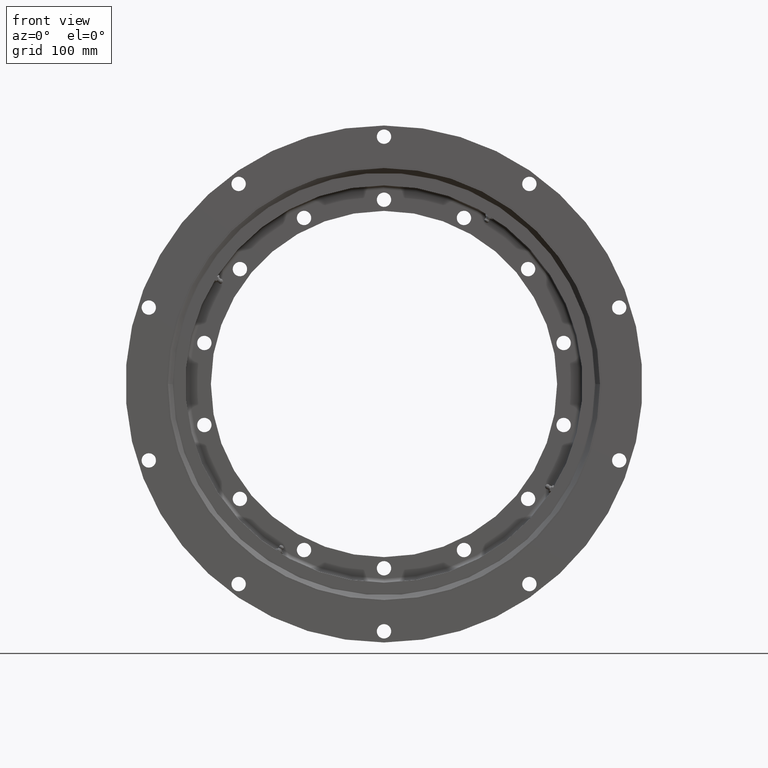
[diagram: clean part render]
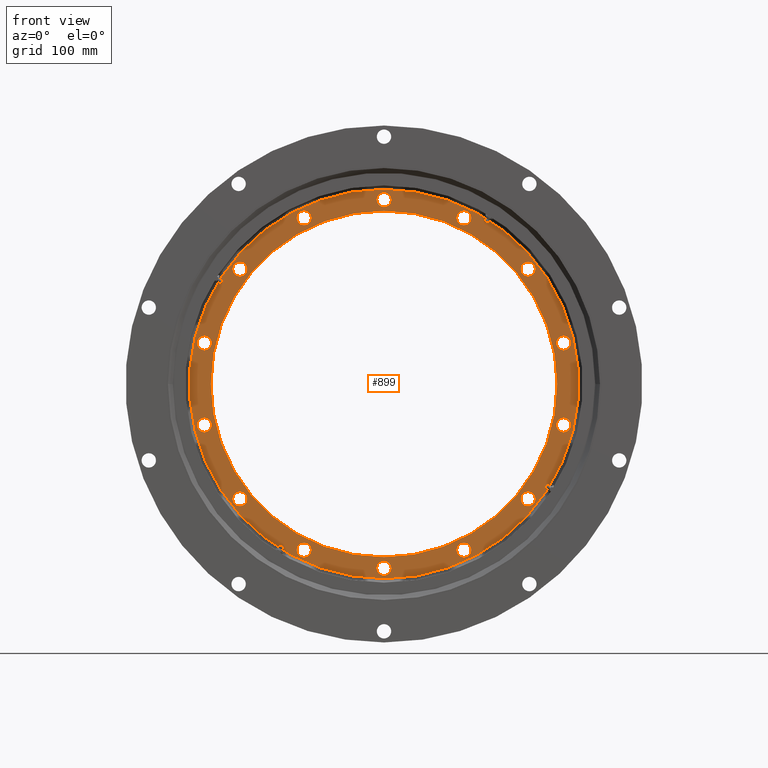
[diagram: same view with one face highlighted and labeled with its STEP entity id]
A machine part, front view. The second image highlights one B-rep face of the part: STEP entity #899.
In plain terms, the highlighted planar face has unit normal (0, -1, -0).
Its self-contained STEP definition (entity closure, byte-faithful):
#5 = AXIS2_PLACEMENT_3D ( 'NONE', #6013, #1482, #6764 ) ;
#40 = VERTEX_POINT ( 'NONE', #7930 ) ;
#56 = EDGE_LOOP ( 'NONE', ( #58, #9621 ) ) ;
#58 = ORIENTED_EDGE ( 'NONE', *, *, #7506, .F. ) ;
#89 = EDGE_CURVE ( 'NONE', #8269, #4325, #4054, .T. ) ;
#188 = CIRCLE ( 'NONE', #5654, 244.0000000000000000 ) ;
#190 = CIRCLE ( 'NONE', #879, 9.000000000000001800 ) ;
#192 = DIRECTION ( 'NONE',  ( 0.0000000000000000000, -1.000000000000000000, -3.092576026240644600E-016 ) ) ;
#220 = CARTESIAN_POINT ( 'NONE',  ( -180.6030724537073700, 16.00000000000009600, -153.0261442248626900 ) ) ;
#394 = CARTESIAN_POINT ( 'NONE',  ( 225.2083477168210400, 16.00000000000002800, 42.40233573155438800 ) ) ;
#445 = AXIS2_PLACEMENT_3D ( 'NONE', #1444, #4981, #8776 ) ;
#446 = VERTEX_POINT ( 'NONE', #8763 ) ;
#455 = CIRCLE ( 'NONE', #9253, 9.000000000000007100 ) ;
#471 = CARTESIAN_POINT ( 'NONE',  ( -100.2271437351152900, 15.99999999999997900, 208.1238084859599600 ) ) ;
#473 = EDGE_LOOP ( 'NONE', ( #605, #4861 ) ) ;
#475 = CIRCLE ( 'NONE', #4878, 9.000000000000001800 ) ;
#522 = EDGE_CURVE ( 'NONE', #2384, #40, #4682, .T. ) ;
#562 = DIRECTION ( 'NONE',  ( 0.0000000000000000000, -1.000000000000000000, -3.092576026240644600E-016 ) ) ;
#566 = EDGE_LOOP ( 'NONE', ( #3797, #2123 ) ) ;
#591 = DIRECTION ( 'NONE',  ( 0.0000000000000000000, 3.092576026240644600E-016, -1.000000000000000000 ) ) ;
#605 = ORIENTED_EDGE ( 'NONE', *, *, #3670, .F. ) ;
#612 = AXIS2_PLACEMENT_3D ( 'NONE', #4142, #9406, #1627 ) ;
#613 = EDGE_LOOP ( 'NONE', ( #3490, #1659 ) ) ;
#632 = ORIENTED_EDGE ( 'NONE', *, *, #8706, .F. ) ;
#688 = DIRECTION ( 'NONE',  ( 0.0000000000000000000, 3.854941057726235100E-016, -1.000000000000000000 ) ) ;
#704 = EDGE_CURVE ( 'NONE', #9065, #2978, #1830, .T. ) ;
#733 = FACE_BOUND ( 'NONE', #5050, .T. ) ;
#749 = CIRCLE ( 'NONE', #4445, 9.000000000000007100 ) ;
#762 = CIRCLE ( 'NONE', #8810, 9.000000000000001800 ) ;
#769 = DIRECTION ( 'NONE',  ( 0.0000000000000000000, -1.000000000000000000, -3.092576026240644600E-016 ) ) ;
#775 = EDGE_LOOP ( 'NONE', ( #6104, #7184 ) ) ;
#813 = CIRCLE ( 'NONE', #5423, 244.0000000000000000 ) ;
#853 = ORIENTED_EDGE ( 'NONE', *, *, #9556, .F. ) ;
#879 = AXIS2_PLACEMENT_3D ( 'NONE', #9594, #995, #8682 ) ;
#885 = VERTEX_POINT ( 'NONE', #8154 ) ;
#899 = ADVANCED_FACE ( 'NONE', ( #7035, #9389, #1950, #6547, #733, #4927, #1378, #4441, #1706, #7503, #1477, #3135, #5396, #8092, #7858, #7738 ), #9764, .T. ) ;
#980 = CARTESIAN_POINT ( 'NONE',  ( -225.2083477150271200, 16.00000000000005700, -51.40233573941410600 ) ) ;
#995 = DIRECTION ( 'NONE',  ( 0.0000000000000000000, -1.000000000000000000, -3.092576026240644600E-016 ) ) ;
#997 = CARTESIAN_POINT ( 'NONE',  ( 180.6030724436502300, 16.00000000000009200, -144.0261442374738900 ) ) ;
#1001 = CIRCLE ( 'NONE', #2912, 217.0000000000000300 ) ;
#1009 = EDGE_CURVE ( 'NONE', #8615, #7221, #6669, .T. ) ;
#1036 = EDGE_LOOP ( 'NONE', ( #5448, #3454 ) ) ;
#1067 = VERTEX_POINT ( 'NONE', #220 ) ;
#1119 = DIRECTION ( 'NONE',  ( 0.0000000000000000000, -1.000000000000000000, -3.092576026240644600E-016 ) ) ;
#1136 = ORIENTED_EDGE ( 'NONE', *, *, #2908, .F. ) ;
#1264 = DIRECTION ( 'NONE',  ( 0.0000000000000000000, 3.854941057726235100E-016, -1.000000000000000000 ) ) ;
#1311 = CARTESIAN_POINT ( 'NONE',  ( 225.2083477114377400, 16.00000000000005700, -51.40233575514012900 ) ) ;
#1312 = CARTESIAN_POINT ( 'NONE',  ( 180.6030724436502300, 16.00000000000008900, -135.0261442374738900 ) ) ;
#1354 = AXIS2_PLACEMENT_3D ( 'NONE', #7462, #2055, #3826 ) ;
#1361 = CARTESIAN_POINT ( 'NONE',  ( -225.2083477150271200, 16.00000000000005300, -42.40233573941410600 ) ) ;
#1378 = FACE_BOUND ( 'NONE', #613, .T. ) ;
#1382 = EDGE_LOOP ( 'NONE', ( #3645, #2865 ) ) ;
#1432 = CARTESIAN_POINT ( 'NONE',  ( 180.6030724587337500, 16.00000000000000000, 153.0261442185597500 ) ) ;
#1444 = CARTESIAN_POINT ( 'NONE',  ( 225.2083477114377400, 16.00000000000005700, -51.40233575514012900 ) ) ;
#1464 = DIRECTION ( 'NONE',  ( 0.0000000000000000000, -1.000000000000000000, -3.092576026240644600E-016 ) ) ;
#1473 = AXIS2_PLACEMENT_3D ( 'NONE', #5673, #1119, #6413 ) ;
#1477 = FACE_BOUND ( 'NONE', #473, .T. ) ;
#1482 = DIRECTION ( 'NONE',  ( -0.0000000000000000000, 1.000000000000000000, 3.092576026240644600E-016 ) ) ;
#1486 = AXIS2_PLACEMENT_3D ( 'NONE', #6067, #192, #5108 ) ;
#1627 = DIRECTION ( 'NONE',  ( 0.0000000000000000000, 3.854941057726237100E-016, -1.000000000000000000 ) ) ;
#1659 = ORIENTED_EDGE ( 'NONE', *, *, #6083, .F. ) ;
#1663 = DIRECTION ( 'NONE',  ( 0.0000000000000000000, -1.000000000000000000, -3.092576026240644600E-016 ) ) ;
#1706 = FACE_BOUND ( 'NONE', #3515, .T. ) ;
#1710 = DIRECTION ( 'NONE',  ( 0.0000000000000000000, -1.000000000000000000, -3.092576026240644600E-016 ) ) ;
#1766 = CARTESIAN_POINT ( 'NONE',  ( -225.2083477150271200, 16.00000000000005700, -51.40233573941410600 ) ) ;
#1772 = AXIS2_PLACEMENT_3D ( 'NONE', #8726, #9215, #5946 ) ;
#1777 = EDGE_CURVE ( 'NONE', #40, #2384, #8421, .T. ) ;
#1830 = CIRCLE ( 'NONE', #7931, 9.000000000000007100 ) ;
#1831 = ORIENTED_EDGE ( 'NONE', *, *, #7721, .F. ) ;
#1858 = DIRECTION ( 'NONE',  ( 0.0000000000000000000, -1.000000000000000000, -3.092576026240644600E-016 ) ) ;
#1875 = DIRECTION ( 'NONE',  ( 0.0000000000000000000, -1.000000000000000000, -3.092576026240644600E-016 ) ) ;
#1950 = FACE_BOUND ( 'NONE', #1382, .T. ) ;
#2029 = CARTESIAN_POINT ( 'NONE',  ( -180.6030724537073700, 16.00000000000008900, -135.0261442248626600 ) ) ;
#2055 = DIRECTION ( 'NONE',  ( 0.0000000000000000000, -1.000000000000000000, -3.092576026240644600E-016 ) ) ;
#2123 = ORIENTED_EDGE ( 'NONE', *, *, #9662, .F. ) ;
#2135 = ORIENTED_EDGE ( 'NONE', *, *, #2178, .F. ) ;
#2178 = EDGE_CURVE ( 'NONE', #8142, #4559, #8735, .T. ) ;
#2186 = CIRCLE ( 'NONE', #612, 9.000000000000001800 ) ;
#2202 = VERTEX_POINT ( 'NONE', #5318 ) ;
#2244 = DIRECTION ( 'NONE',  ( 0.0000000000000000000, -1.000000000000000000, -3.092576026240644600E-016 ) ) ;
#2263 = EDGE_CURVE ( 'NONE', #7050, #9046, #2475, .T. ) ;
#2266 = AXIS2_PLACEMENT_3D ( 'NONE', #3047, #7569, #2281 ) ;
#2281 = DIRECTION ( 'NONE',  ( 0.0000000000000000000, 3.854941057726235100E-016, -1.000000000000000000 ) ) ;
#2288 = CIRCLE ( 'NONE', #4251, 9.000000000000007100 ) ;
#2379 = VERTEX_POINT ( 'NONE', #2940 ) ;
#2384 = VERTEX_POINT ( 'NONE', #1432 ) ;
#2475 = CIRCLE ( 'NONE', #3287, 9.000000000000007100 ) ;
#2551 = AXIS2_PLACEMENT_3D ( 'NONE', #6184, #1663, #5449 ) ;
#2583 = CARTESIAN_POINT ( 'NONE',  ( -225.2083477132316900, 16.00000000000002100, 60.40233574728031100 ) ) ;
#2740 = CARTESIAN_POINT ( 'NONE',  ( -100.2271437351152900, 15.99999999999998200, 199.1238084859599600 ) ) ;
#2769 = DIRECTION ( 'NONE',  ( 0.0000000000000000000, 3.854941057726235100E-016, -1.000000000000000000 ) ) ;
#2809 = CARTESIAN_POINT ( 'NONE',  ( -8.065175505147115900E-009, 16.00000000000010700, -222.0000000000000000 ) ) ;
#2865 = ORIENTED_EDGE ( 'NONE', *, *, #1777, .F. ) ;
#2904 = DIRECTION ( 'NONE',  ( 0.0000000000000000000, -1.000000000000000000, -3.092576026240644600E-016 ) ) ;
#2908 = EDGE_CURVE ( 'NONE', #4559, #8142, #2288, .T. ) ;
#2912 = AXIS2_PLACEMENT_3D ( 'NONE', #8840, #4322, #9589 ) ;
#2940 = CARTESIAN_POINT ( 'NONE',  ( 100.2271437278518000, 16.00000000000011000, -217.1238084894579000 ) ) ;
#2978 = VERTEX_POINT ( 'NONE', #3713 ) ;
#2990 = DIRECTION ( 'NONE',  ( 0.0000000000000000000, -1.000000000000000000, -3.092576026240644600E-016 ) ) ;
#2996 = ORIENTED_EDGE ( 'NONE', *, *, #4761, .T. ) ;
#3047 = CARTESIAN_POINT ( 'NONE',  ( 100.2271437496483100, 15.99999999999997900, 208.1238084789612500 ) ) ;
#3087 = CARTESIAN_POINT ( 'NONE',  ( 180.6030724587337500, 16.00000000000000400, 144.0261442185597500 ) ) ;
#3135 = FACE_BOUND ( 'NONE', #1036, .T. ) ;
#3150 = DIRECTION ( 'NONE',  ( 0.0000000000000000000, 3.854941057726235100E-016, -1.000000000000000000 ) ) ;
#3165 = ORIENTED_EDGE ( 'NONE', *, *, #9357, .T. ) ;
#3226 = DIRECTION ( 'NONE',  ( 0.0000000000000000000, -1.000000000000000000, -3.092576026240644600E-016 ) ) ;
#3230 = AXIS2_PLACEMENT_3D ( 'NONE', #4432, #3344, #5788 ) ;
#3287 = AXIS2_PLACEMENT_3D ( 'NONE', #6752, #1464, #5997 ) ;
#3344 = DIRECTION ( 'NONE',  ( 0.0000000000000000000, -1.000000000000000000, -3.092576026240644600E-016 ) ) ;
#3397 = CIRCLE ( 'NONE', #2551, 9.000000000000007100 ) ;
#3433 = ORIENTED_EDGE ( 'NONE', *, *, #9111, .F. ) ;
#3441 = CARTESIAN_POINT ( 'NONE',  ( -180.6030724486766700, 16.00000000000000700, 135.0261442311708900 ) ) ;
#3454 = ORIENTED_EDGE ( 'NONE', *, *, #6679, .F. ) ;
#3489 = CIRCLE ( 'NONE', #7365, 9.000000000000001800 ) ;
#3490 = ORIENTED_EDGE ( 'NONE', *, *, #5826, .F. ) ;
#3515 = EDGE_LOOP ( 'NONE', ( #3790, #4367 ) ) ;
#3569 = CIRCLE ( 'NONE', #8397, 9.000000000000007100 ) ;
#3606 = DIRECTION ( 'NONE',  ( 0.0000000000000000000, 3.854941057726235100E-016, -1.000000000000000000 ) ) ;
#3645 = ORIENTED_EDGE ( 'NONE', *, *, #522, .F. ) ;
#3657 = VERTEX_POINT ( 'NONE', #8644 ) ;
#3667 = DIRECTION ( 'NONE',  ( 0.0000000000000000000, -1.000000000000000000, -3.092576026240644600E-016 ) ) ;
#3670 = EDGE_CURVE ( 'NONE', #5020, #6586, #475, .T. ) ;
#3713 = CARTESIAN_POINT ( 'NONE',  ( 3.330669073875469200E-012, 15.99999999999997000, 240.0000000000000300 ) ) ;
#3790 = ORIENTED_EDGE ( 'NONE', *, *, #3818, .F. ) ;
#3797 = ORIENTED_EDGE ( 'NONE', *, *, #9697, .F. ) ;
#3818 = EDGE_CURVE ( 'NONE', #4325, #8269, #3569, .T. ) ;
#3826 = DIRECTION ( 'NONE',  ( 0.0000000000000000000, 3.854941057726235100E-016, -1.000000000000000000 ) ) ;
#3828 = EDGE_LOOP ( 'NONE', ( #632, #7934 ) ) ;
#3843 = CIRCLE ( 'NONE', #1473, 9.000000000000001800 ) ;
#3935 = DIRECTION ( 'NONE',  ( 0.0000000000000000000, 3.854941057726237100E-016, -1.000000000000000000 ) ) ;
#4054 = CIRCLE ( 'NONE', #9715, 9.000000000000007100 ) ;
#4067 = ORIENTED_EDGE ( 'NONE', *, *, #5778, .T. ) ;
#4072 = EDGE_CURVE ( 'NONE', #446, #8819, #7211, .T. ) ;
#4086 = CARTESIAN_POINT ( 'NONE',  ( -225.2083477150271200, 16.00000000000006000, -60.40233573941410600 ) ) ;
#4141 = AXIS2_PLACEMENT_3D ( 'NONE', #8807, #7055, #7543 ) ;
#4142 = CARTESIAN_POINT ( 'NONE',  ( -225.2083477132316900, 16.00000000000002500, 51.40233574728030400 ) ) ;
#4199 = EDGE_LOOP ( 'NONE', ( #8315, #1831 ) ) ;
#4203 = DIRECTION ( 'NONE',  ( 0.0000000000000000000, 3.854941057726235100E-016, -1.000000000000000000 ) ) ;
#4210 = AXIS2_PLACEMENT_3D ( 'NONE', #6432, #3226, #591 ) ;
#4231 = VERTEX_POINT ( 'NONE', #5784 ) ;
#4237 = DIRECTION ( 'NONE',  ( 0.0000000000000000000, 3.128189874712274900E-016, -1.000000000000000000 ) ) ;
#4251 = AXIS2_PLACEMENT_3D ( 'NONE', #8273, #2990, #7517 ) ;
#4319 = DIRECTION ( 'NONE',  ( 0.0000000000000000000, 3.854941057726237100E-016, -1.000000000000000000 ) ) ;
#4322 = DIRECTION ( 'NONE',  ( -0.0000000000000000000, 1.000000000000000000, 3.092576026240644600E-016 ) ) ;
#4325 = VERTEX_POINT ( 'NONE', #9033 ) ;
#4367 = ORIENTED_EDGE ( 'NONE', *, *, #89, .F. ) ;
#4432 = CARTESIAN_POINT ( 'NONE',  ( 100.2271437278518000, 16.00000000000010700, -208.1238084894578700 ) ) ;
#4441 = FACE_BOUND ( 'NONE', #5336, .T. ) ;
#4445 = AXIS2_PLACEMENT_3D ( 'NONE', #5569, #1858, #7976 ) ;
#4452 = EDGE_LOOP ( 'NONE', ( #4067, #8332 ) ) ;
#4524 = DIRECTION ( 'NONE',  ( 0.0000000000000000000, 3.854941057726235100E-016, -1.000000000000000000 ) ) ;
#4559 = VERTEX_POINT ( 'NONE', #6887 ) ;
#4582 = VERTEX_POINT ( 'NONE', #2029 ) ;
#4619 = VERTEX_POINT ( 'NONE', #1312 ) ;
#4682 = CIRCLE ( 'NONE', #1354, 9.000000000000007100 ) ;
#4716 = AXIS2_PLACEMENT_3D ( 'NONE', #6993, #8562, #7023 ) ;
#4761 = EDGE_CURVE ( 'NONE', #2202, #7305, #188, .T. ) ;
#4805 = CARTESIAN_POINT ( 'NONE',  ( 225.2083477168210400, 16.00000000000002100, 60.40233573155438800 ) ) ;
#4834 = AXIS2_PLACEMENT_3D ( 'NONE', #7797, #8817, #2769 ) ;
#4861 = ORIENTED_EDGE ( 'NONE', *, *, #7273, .F. ) ;
#4868 = CARTESIAN_POINT ( 'NONE',  ( 0.0000000000000000000, 16.00000000000004300, 4.001271469024075200E-016 ) ) ;
#4878 = AXIS2_PLACEMENT_3D ( 'NONE', #980, #8440, #3935 ) ;
#4927 = FACE_BOUND ( 'NONE', #566, .T. ) ;
#4981 = DIRECTION ( 'NONE',  ( 0.0000000000000000000, -1.000000000000000000, -3.092576026240644600E-016 ) ) ;
#5020 = VERTEX_POINT ( 'NONE', #1361 ) ;
#5050 = EDGE_LOOP ( 'NONE', ( #5664, #6965 ) ) ;
#5058 = ORIENTED_EDGE ( 'NONE', *, *, #704, .F. ) ;
#5076 = CARTESIAN_POINT ( 'NONE',  ( 0.0000000000000000000, 15.99999999999997000, 217.0000000000000300 ) ) ;
#5108 = DIRECTION ( 'NONE',  ( 0.0000000000000000000, 3.854941057726235100E-016, -1.000000000000000000 ) ) ;
#5128 = CARTESIAN_POINT ( 'NONE',  ( 3.330669073875469200E-012, 15.99999999999997300, 231.0000000000000000 ) ) ;
#5285 = AXIS2_PLACEMENT_3D ( 'NONE', #5128, #562, #3606 ) ;
#5318 = CARTESIAN_POINT ( 'NONE',  ( 3.018754359898225800E-014, 15.99999999999996600, 244.0000000000000000 ) ) ;
#5336 = EDGE_LOOP ( 'NONE', ( #3433, #853 ) ) ;
#5352 = EDGE_CURVE ( 'NONE', #1067, #4582, #9784, .T. ) ;
#5396 = FACE_BOUND ( 'NONE', #3828, .T. ) ;
#5423 = AXIS2_PLACEMENT_3D ( 'NONE', #4868, #8604, #4237 ) ;
#5448 = ORIENTED_EDGE ( 'NONE', *, *, #8469, .F. ) ;
#5449 = DIRECTION ( 'NONE',  ( 0.0000000000000000000, 3.854941057726235100E-016, -1.000000000000000000 ) ) ;
#5561 = EDGE_LOOP ( 'NONE', ( #2135, #1136 ) ) ;
#5569 = CARTESIAN_POINT ( 'NONE',  ( 100.2271437278518000, 16.00000000000010700, -208.1238084894578700 ) ) ;
#5654 = AXIS2_PLACEMENT_3D ( 'NONE', #8533, #6070, #7360 ) ;
#5662 = CIRCLE ( 'NONE', #8175, 9.000000000000001800 ) ;
#5664 = ORIENTED_EDGE ( 'NONE', *, *, #1009, .F. ) ;
#5673 = CARTESIAN_POINT ( 'NONE',  ( 225.2083477168210400, 16.00000000000002500, 51.40233573155438800 ) ) ;
#5778 = EDGE_CURVE ( 'NONE', #9157, #885, #1001, .T. ) ;
#5784 = CARTESIAN_POINT ( 'NONE',  ( -225.2083477132316900, 16.00000000000002800, 42.40233574728030400 ) ) ;
#5788 = DIRECTION ( 'NONE',  ( 0.0000000000000000000, 3.854941057726235100E-016, -1.000000000000000000 ) ) ;
#5814 = DIRECTION ( 'NONE',  ( 0.0000000000000000000, -1.000000000000000000, -3.092576026240644600E-016 ) ) ;
#5826 = EDGE_CURVE ( 'NONE', #3657, #2379, #749, .T. ) ;
#5946 = DIRECTION ( 'NONE',  ( 0.0000000000000000000, 3.854941057726235100E-016, -1.000000000000000000 ) ) ;
#5997 = DIRECTION ( 'NONE',  ( 0.0000000000000000000, 3.854941057726235100E-016, -1.000000000000000000 ) ) ;
#6013 = CARTESIAN_POINT ( 'NONE',  ( 0.0000000000000000000, 16.00000000000003600, 7.550206855950252200E-015 ) ) ;
#6067 = CARTESIAN_POINT ( 'NONE',  ( 180.6030724436502300, 16.00000000000009200, -144.0261442374738900 ) ) ;
#6070 = DIRECTION ( 'NONE',  ( 0.0000000000000000000, -1.000000000000000000, -3.092576026240644600E-016 ) ) ;
#6083 = EDGE_CURVE ( 'NONE', #2379, #3657, #6919, .T. ) ;
#6104 = ORIENTED_EDGE ( 'NONE', *, *, #4072, .F. ) ;
#6127 = EDGE_CURVE ( 'NONE', #2978, #9065, #8687, .T. ) ;
#6184 = CARTESIAN_POINT ( 'NONE',  ( -8.065175505147115900E-009, 16.00000000000011000, -231.0000000000000000 ) ) ;
#6217 = CARTESIAN_POINT ( 'NONE',  ( -180.6030724486766700, 16.00000000000000000, 153.0261442311709200 ) ) ;
#6240 = CARTESIAN_POINT ( 'NONE',  ( -225.2083477132316900, 16.00000000000002500, 51.40233574728030400 ) ) ;
#6252 = VERTEX_POINT ( 'NONE', #394 ) ;
#6271 = CARTESIAN_POINT ( 'NONE',  ( 3.330669073875469200E-012, 15.99999999999997300, 231.0000000000000000 ) ) ;
#6318 = VERTEX_POINT ( 'NONE', #2583 ) ;
#6407 = CARTESIAN_POINT ( 'NONE',  ( -100.2271437423847400, 16.00000000000010700, -208.1238084824592000 ) ) ;
#6413 = DIRECTION ( 'NONE',  ( 0.0000000000000000000, 3.854941057726237100E-016, -1.000000000000000000 ) ) ;
#6432 = CARTESIAN_POINT ( 'NONE',  ( 0.0000000000000000000, 15.99999999999996600, 249.0000000000000000 ) ) ;
#6547 = FACE_BOUND ( 'NONE', #4199, .T. ) ;
#6586 = VERTEX_POINT ( 'NONE', #4086 ) ;
#6669 = CIRCLE ( 'NONE', #445, 9.000000000000001800 ) ;
#6679 = EDGE_CURVE ( 'NONE', #4231, #6318, #2186, .T. ) ;
#6735 = DIRECTION ( 'NONE',  ( 0.0000000000000000000, 3.854941057726237100E-016, -1.000000000000000000 ) ) ;
#6752 = CARTESIAN_POINT ( 'NONE',  ( -180.6030724486766700, 16.00000000000000400, 144.0261442311709200 ) ) ;
#6764 = DIRECTION ( 'NONE',  ( 0.0000000000000000000, -3.037764612309615600E-016, 1.000000000000000000 ) ) ;
#6775 = CARTESIAN_POINT ( 'NONE',  ( 225.2083477114377400, 16.00000000000005300, -42.40233575514012900 ) ) ;
#6852 = EDGE_LOOP ( 'NONE', ( #9496, #5058 ) ) ;
#6887 = CARTESIAN_POINT ( 'NONE',  ( 100.2271437496483100, 15.99999999999998200, 199.1238084789612500 ) ) ;
#6919 = CIRCLE ( 'NONE', #3230, 9.000000000000007100 ) ;
#6965 = ORIENTED_EDGE ( 'NONE', *, *, #8985, .F. ) ;
#6978 = EDGE_CURVE ( 'NONE', #8938, #6252, #3843, .T. ) ;
#6993 = CARTESIAN_POINT ( 'NONE',  ( -8.065175505147115900E-009, 16.00000000000011000, -231.0000000000000000 ) ) ;
#7023 = DIRECTION ( 'NONE',  ( 0.0000000000000000000, 3.854941057726235100E-016, -1.000000000000000000 ) ) ;
#7035 = FACE_OUTER_BOUND ( 'NONE', #7791, .T. ) ;
#7050 = VERTEX_POINT ( 'NONE', #3441 ) ;
#7055 = DIRECTION ( 'NONE',  ( 0.0000000000000000000, -1.000000000000000000, -3.092576026240644600E-016 ) ) ;
#7105 = CARTESIAN_POINT ( 'NONE',  ( 180.6030724436502300, 16.00000000000009600, -153.0261442374739100 ) ) ;
#7184 = ORIENTED_EDGE ( 'NONE', *, *, #7235, .F. ) ;
#7211 = CIRCLE ( 'NONE', #8220, 9.000000000000007100 ) ;
#7221 = VERTEX_POINT ( 'NONE', #8495 ) ;
#7235 = EDGE_CURVE ( 'NONE', #8819, #446, #7717, .T. ) ;
#7273 = EDGE_CURVE ( 'NONE', #6586, #5020, #3489, .T. ) ;
#7305 = VERTEX_POINT ( 'NONE', #7749 ) ;
#7360 = DIRECTION ( 'NONE',  ( 0.0000000000000000000, 3.128189874712274900E-016, -1.000000000000000000 ) ) ;
#7364 = DIRECTION ( 'NONE',  ( 0.0000000000000000000, 3.854941057726235100E-016, -1.000000000000000000 ) ) ;
#7365 = AXIS2_PLACEMENT_3D ( 'NONE', #1766, #9709, #6735 ) ;
#7398 = VERTEX_POINT ( 'NONE', #9170 ) ;
#7453 = DIRECTION ( 'NONE',  ( 0.0000000000000000000, 3.854941057726237100E-016, -1.000000000000000000 ) ) ;
#7462 = CARTESIAN_POINT ( 'NONE',  ( 180.6030724587337500, 16.00000000000000400, 144.0261442185597500 ) ) ;
#7486 = AXIS2_PLACEMENT_3D ( 'NONE', #8160, #3667, #8916 ) ;
#7503 = FACE_BOUND ( 'NONE', #56, .T. ) ;
#7506 = EDGE_CURVE ( 'NONE', #4582, #1067, #8137, .T. ) ;
#7517 = DIRECTION ( 'NONE',  ( 0.0000000000000000000, 3.854941057726235100E-016, -1.000000000000000000 ) ) ;
#7537 = VERTEX_POINT ( 'NONE', #7105 ) ;
#7543 = DIRECTION ( 'NONE',  ( 0.0000000000000000000, 3.854941057726235100E-016, -1.000000000000000000 ) ) ;
#7569 = DIRECTION ( 'NONE',  ( 0.0000000000000000000, -1.000000000000000000, -3.092576026240644600E-016 ) ) ;
#7717 = CIRCLE ( 'NONE', #4834, 9.000000000000007100 ) ;
#7721 = EDGE_CURVE ( 'NONE', #6252, #8938, #190, .T. ) ;
#7738 = FACE_BOUND ( 'NONE', #4452, .T. ) ;
#7749 = CARTESIAN_POINT ( 'NONE',  ( 0.0000000000000000000, 16.00000000000011700, -244.0000000000000000 ) ) ;
#7791 = EDGE_LOOP ( 'NONE', ( #3165, #2996 ) ) ;
#7797 = CARTESIAN_POINT ( 'NONE',  ( -100.2271437351152900, 15.99999999999997900, 208.1238084859599600 ) ) ;
#7858 = FACE_BOUND ( 'NONE', #6852, .T. ) ;
#7886 = VERTEX_POINT ( 'NONE', #2809 ) ;
#7930 = CARTESIAN_POINT ( 'NONE',  ( 180.6030724587337500, 16.00000000000000700, 135.0261442185597500 ) ) ;
#7931 = AXIS2_PLACEMENT_3D ( 'NONE', #6271, #8610, #688 ) ;
#7934 = ORIENTED_EDGE ( 'NONE', *, *, #2263, .F. ) ;
#7976 = DIRECTION ( 'NONE',  ( 0.0000000000000000000, 3.854941057726235100E-016, -1.000000000000000000 ) ) ;
#8040 = CIRCLE ( 'NONE', #1486, 9.000000000000007100 ) ;
#8092 = FACE_BOUND ( 'NONE', #775, .T. ) ;
#8099 = EDGE_CURVE ( 'NONE', #885, #9157, #8462, .T. ) ;
#8137 = CIRCLE ( 'NONE', #4141, 9.000000000000007100 ) ;
#8142 = VERTEX_POINT ( 'NONE', #9066 ) ;
#8154 = CARTESIAN_POINT ( 'NONE',  ( 2.657483554149756800E-014, 16.00000000000009900, -217.0000000000000300 ) ) ;
#8160 = CARTESIAN_POINT ( 'NONE',  ( -180.6030724486766700, 16.00000000000000400, 144.0261442311709200 ) ) ;
#8175 = AXIS2_PLACEMENT_3D ( 'NONE', #6240, #1710, #7453 ) ;
#8187 = AXIS2_PLACEMENT_3D ( 'NONE', #3087, #8388, #3150 ) ;
#8218 = CARTESIAN_POINT ( 'NONE',  ( -100.2271437423847400, 16.00000000000010700, -208.1238084824592000 ) ) ;
#8220 = AXIS2_PLACEMENT_3D ( 'NONE', #471, #5814, #1264 ) ;
#8230 = CARTESIAN_POINT ( 'NONE',  ( -100.2271437423847400, 16.00000000000011000, -217.1238084824592200 ) ) ;
#8269 = VERTEX_POINT ( 'NONE', #8230 ) ;
#8273 = CARTESIAN_POINT ( 'NONE',  ( 100.2271437496483100, 15.99999999999997900, 208.1238084789612500 ) ) ;
#8315 = ORIENTED_EDGE ( 'NONE', *, *, #6978, .F. ) ;
#8332 = ORIENTED_EDGE ( 'NONE', *, *, #8099, .T. ) ;
#8388 = DIRECTION ( 'NONE',  ( 0.0000000000000000000, -1.000000000000000000, -3.092576026240644600E-016 ) ) ;
#8397 = AXIS2_PLACEMENT_3D ( 'NONE', #6407, #1875, #4524 ) ;
#8421 = CIRCLE ( 'NONE', #8187, 9.000000000000007100 ) ;
#8440 = DIRECTION ( 'NONE',  ( 0.0000000000000000000, -1.000000000000000000, -3.092576026240644600E-016 ) ) ;
#8462 = CIRCLE ( 'NONE', #5, 217.0000000000000300 ) ;
#8469 = EDGE_CURVE ( 'NONE', #6318, #4231, #5662, .T. ) ;
#8495 = CARTESIAN_POINT ( 'NONE',  ( 225.2083477114377400, 16.00000000000006000, -60.40233575514012900 ) ) ;
#8533 = CARTESIAN_POINT ( 'NONE',  ( 0.0000000000000000000, 16.00000000000004300, 4.001271469024075200E-016 ) ) ;
#8562 = DIRECTION ( 'NONE',  ( 0.0000000000000000000, -1.000000000000000000, -3.092576026240644600E-016 ) ) ;
#8604 = DIRECTION ( 'NONE',  ( 0.0000000000000000000, -1.000000000000000000, -3.092576026240644600E-016 ) ) ;
#8610 = DIRECTION ( 'NONE',  ( 0.0000000000000000000, -1.000000000000000000, -3.092576026240644600E-016 ) ) ;
#8615 = VERTEX_POINT ( 'NONE', #6775 ) ;
#8644 = CARTESIAN_POINT ( 'NONE',  ( 100.2271437278518000, 16.00000000000010300, -199.1238084894578700 ) ) ;
#8682 = DIRECTION ( 'NONE',  ( 0.0000000000000000000, 3.854941057726237100E-016, -1.000000000000000000 ) ) ;
#8687 = CIRCLE ( 'NONE', #5285, 9.000000000000007100 ) ;
#8704 = CIRCLE ( 'NONE', #7486, 9.000000000000007100 ) ;
#8706 = EDGE_CURVE ( 'NONE', #9046, #7050, #8704, .T. ) ;
#8726 = CARTESIAN_POINT ( 'NONE',  ( -180.6030724537073700, 16.00000000000009200, -144.0261442248626900 ) ) ;
#8735 = CIRCLE ( 'NONE', #2266, 9.000000000000007100 ) ;
#8763 = CARTESIAN_POINT ( 'NONE',  ( -100.2271437351152900, 15.99999999999997700, 217.1238084859599600 ) ) ;
#8776 = DIRECTION ( 'NONE',  ( 0.0000000000000000000, 3.854941057726237100E-016, -1.000000000000000000 ) ) ;
#8807 = CARTESIAN_POINT ( 'NONE',  ( -180.6030724537073700, 16.00000000000009200, -144.0261442248626900 ) ) ;
#8810 = AXIS2_PLACEMENT_3D ( 'NONE', #1311, #769, #4319 ) ;
#8817 = DIRECTION ( 'NONE',  ( 0.0000000000000000000, -1.000000000000000000, -3.092576026240644600E-016 ) ) ;
#8819 = VERTEX_POINT ( 'NONE', #2740 ) ;
#8840 = CARTESIAN_POINT ( 'NONE',  ( 0.0000000000000000000, 16.00000000000003600, 7.550206855950252200E-015 ) ) ;
#8916 = DIRECTION ( 'NONE',  ( 0.0000000000000000000, 3.854941057726235100E-016, -1.000000000000000000 ) ) ;
#8938 = VERTEX_POINT ( 'NONE', #4805 ) ;
#8985 = EDGE_CURVE ( 'NONE', #7221, #8615, #762, .T. ) ;
#9033 = CARTESIAN_POINT ( 'NONE',  ( -100.2271437423847400, 16.00000000000010300, -199.1238084824592000 ) ) ;
#9046 = VERTEX_POINT ( 'NONE', #6217 ) ;
#9065 = VERTEX_POINT ( 'NONE', #9555 ) ;
#9066 = CARTESIAN_POINT ( 'NONE',  ( 100.2271437496483100, 15.99999999999997700, 217.1238084789612500 ) ) ;
#9111 = EDGE_CURVE ( 'NONE', #7886, #7398, #3397, .T. ) ;
#9157 = VERTEX_POINT ( 'NONE', #5076 ) ;
#9170 = CARTESIAN_POINT ( 'NONE',  ( -8.065174402964996600E-009, 16.00000000000011400, -240.0000000000000300 ) ) ;
#9215 = DIRECTION ( 'NONE',  ( 0.0000000000000000000, -1.000000000000000000, -3.092576026240644600E-016 ) ) ;
#9253 = AXIS2_PLACEMENT_3D ( 'NONE', #997, #2244, #4203 ) ;
#9357 = EDGE_CURVE ( 'NONE', #7305, #2202, #813, .T. ) ;
#9389 = FACE_BOUND ( 'NONE', #5561, .T. ) ;
#9406 = DIRECTION ( 'NONE',  ( 0.0000000000000000000, -1.000000000000000000, -3.092576026240644600E-016 ) ) ;
#9496 = ORIENTED_EDGE ( 'NONE', *, *, #6127, .F. ) ;
#9555 = CARTESIAN_POINT ( 'NONE',  ( 3.331771255994701900E-012, 15.99999999999997700, 222.0000000000000000 ) ) ;
#9556 = EDGE_CURVE ( 'NONE', #7398, #7886, #9703, .T. ) ;
#9589 = DIRECTION ( 'NONE',  ( 0.0000000000000000000, -3.037764612309615600E-016, 1.000000000000000000 ) ) ;
#9594 = CARTESIAN_POINT ( 'NONE',  ( 225.2083477168210400, 16.00000000000002500, 51.40233573155438800 ) ) ;
#9621 = ORIENTED_EDGE ( 'NONE', *, *, #5352, .F. ) ;
#9662 = EDGE_CURVE ( 'NONE', #7537, #4619, #455, .T. ) ;
#9697 = EDGE_CURVE ( 'NONE', #4619, #7537, #8040, .T. ) ;
#9703 = CIRCLE ( 'NONE', #4716, 9.000000000000007100 ) ;
#9709 = DIRECTION ( 'NONE',  ( 0.0000000000000000000, -1.000000000000000000, -3.092576026240644600E-016 ) ) ;
#9715 = AXIS2_PLACEMENT_3D ( 'NONE', #8218, #2904, #7364 ) ;
#9764 = PLANE ( 'NONE',  #4210 ) ;
#9784 = CIRCLE ( 'NONE', #1772, 9.000000000000007100 ) ;